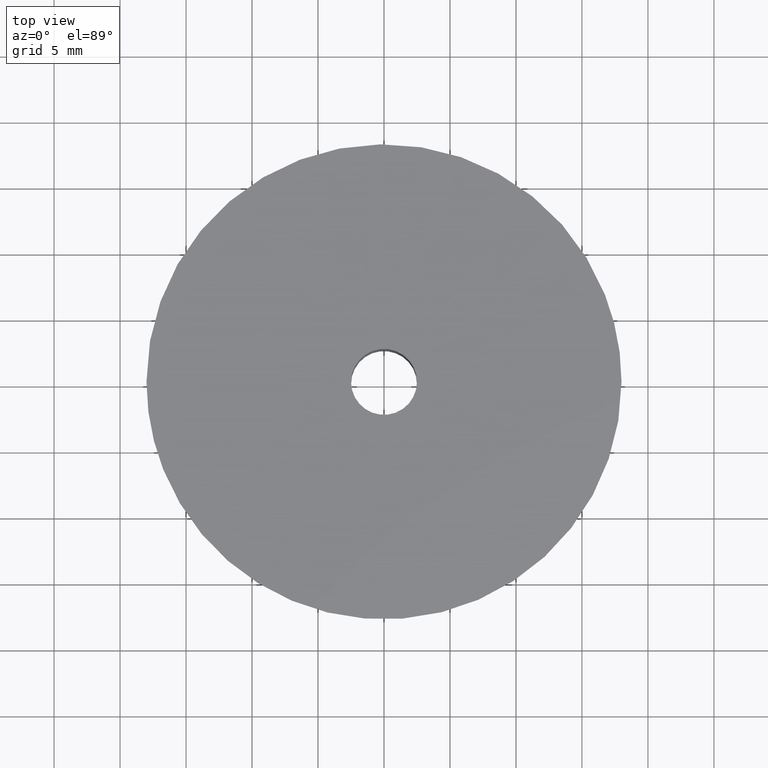
[diagram: clean part render]
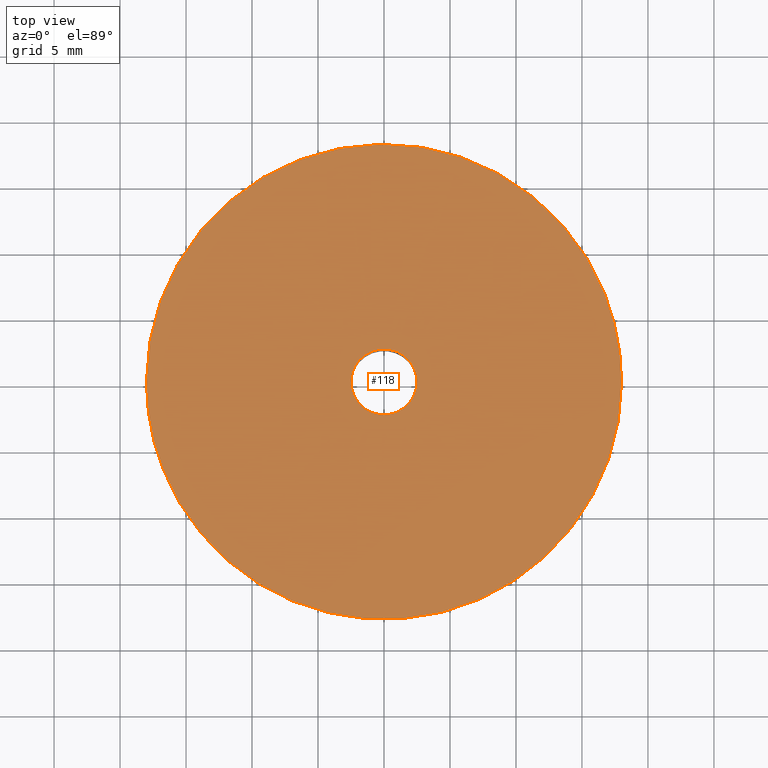
[diagram: same view with one face highlighted and labeled with its STEP entity id]
A machine part, top view. The second image highlights one B-rep face of the part: STEP entity #118.
In plain terms, the highlighted planar face has unit normal (0, 0, -1).
Its self-contained STEP definition (entity closure, byte-faithful):
#118=ADVANCED_FACE('',(#195,#196),#194,.F.);
#194=PLANE('',#373);
#195=FACE_OUTER_BOUND('',#374,.T.);
#196=FACE_BOUND('',#375,.T.);
#370=CARTESIAN_POINT('',(2.16000000000E+001,-2.26866675623E+001,2.20000000000E+001));
#371=DIRECTION('',(0.00000000000E+000,0.00000000000E+000,-1.00000000000E+000));
#372=DIRECTION('',(-1.00000000000E+000,0.00000000000E+000,0.00000000000E+000));
#373=AXIS2_PLACEMENT_3D('',#370,#371,#372);
#374=EDGE_LOOP('',(#530,#531,#532,#533,#534));
#375=EDGE_LOOP('',(#535,#536,#537));
#530=ORIENTED_EDGE('',*,*,#634,.F.);
#531=ORIENTED_EDGE('',*,*,#635,.F.);
#532=ORIENTED_EDGE('',*,*,#636,.F.);
#533=ORIENTED_EDGE('',*,*,#637,.F.);
#534=ORIENTED_EDGE('',*,*,#638,.F.);
#535=ORIENTED_EDGE('',*,*,#639,.T.);
#536=ORIENTED_EDGE('',*,*,#640,.T.);
#537=ORIENTED_EDGE('',*,*,#641,.T.);
#634=EDGE_CURVE('',#786,#787,#788,.T.);
#635=EDGE_CURVE('',#794,#786,#795,.T.);
#636=EDGE_CURVE('',#801,#794,#802,.T.);
#637=EDGE_CURVE('',#808,#801,#809,.T.);
#638=EDGE_CURVE('',#787,#808,#815,.T.);
#639=EDGE_CURVE('',#821,#822,#823,.T.);
#640=EDGE_CURVE('',#822,#829,#830,.T.);
#641=EDGE_CURVE('',#829,#821,#836,.T.);
#786=VERTEX_POINT('',#1152);
#787=VERTEX_POINT('',#1153);
#788=CIRCLE('',#1157,1.79999994365E+001);
#794=VERTEX_POINT('',#1158);
#795=CIRCLE('',#1162,1.79999990315E+001);
#801=VERTEX_POINT('',#1163);
#802=CIRCLE('',#1167,1.79999995544E+001);
#808=VERTEX_POINT('',#1168);
#809=CIRCLE('',#1172,1.80000000000E+001);
#815=CIRCLE('',#1176,1.80000000000E+001);
#821=VERTEX_POINT('',#1177);
#822=VERTEX_POINT('',#1178);
#823=CIRCLE('',#1182,2.50000000000E+000);
#829=VERTEX_POINT('',#1183);
#830=CIRCLE('',#1187,2.50000000000E+000);
#836=CIRCLE('',#1191,2.50000000000E+000);
#1152=CARTESIAN_POINT('',(-1.67375613744E+001,-6.62223671122E+000,2.19999958895E+001));
#1153=CARTESIAN_POINT('',(-1.80000000000E+001,0.00000000000E+000,2.20000000000E+001));
#1154=CARTESIAN_POINT('',(-5.63484412908E-007,1.41614240246E-006,2.19999979448E+001));
#1155=DIRECTION('',(-1.14180157036E-007,5.98942691811E-007,-1.00000000000E+000));
#1156=DIRECTION('',(9.29864518604E-001,3.67902129704E-001,1.14180215132E-007));
#1157=AXIS2_PLACEMENT_3D('',#1154,#1155,#1156);
#1158=CARTESIAN_POINT('',(1.41225336323E+000,-1.79445123084E+001,2.19999962416E+001));
#1159=CARTESIAN_POINT('',(-2.50010632641E-007,-4.77107032992E-007,2.19999960656E+001));
#1160=DIRECTION('',(1.39663330828E-008,-8.71252228513E-009,-1.00000000000E+000));
#1161=DIRECTION('',(-7.84585382907E-002,9.96917377604E-001,-9.78144294777E-009));
#1162=AXIS2_PLACEMENT_3D('',#1159,#1160,#1161);
#1163=CARTESIAN_POINT('',(1.80000000000E+001,0.00000000000E+000,2.20000000000E+001));
#1164=CARTESIAN_POINT('',(4.45646117342E-007,1.02139257052E-007,2.19999981208E+001));
#1165=DIRECTION('',(1.04398717689E-007,1.12937831198E-007,-1.00000000000E+000));
#1166=DIRECTION('',(-1.00000000000E+000,5.67440331005E-009,-1.04398717048E-007));
#1167=AXIS2_PLACEMENT_3D('',#1164,#1165,#1166);
#1168=CARTESIAN_POINT('',(1.67375584237E+001,6.62224569263E+000,2.20000000000E+001));
#1169=CARTESIAN_POINT('',(0.00000000000E+000,0.00000000000E+000,2.20000000000E+001));
#1170=DIRECTION('',(-0.00000000000E+000,-4.18691322316E-016,-1.00000000000E+000));
#1171=DIRECTION('',(1.00000000000E+000,-0.00000000000E+000,-0.00000000000E+000));
#1172=AXIS2_PLACEMENT_3D('',#1169,#1170,#1171);
#1173=CARTESIAN_POINT('',(0.00000000000E+000,0.00000000000E+000,2.20000000000E+001));
#1174=DIRECTION('',(-0.00000000000E+000,-4.18691322316E-016,-1.00000000000E+000));
#1175=DIRECTION('',(1.00000000000E+000,-0.00000000000E+000,-0.00000000000E+000));
#1176=AXIS2_PLACEMENT_3D('',#1173,#1174,#1175);
#1177=CARTESIAN_POINT('',(-2.50000000000E+000,6.66133814775E-016,2.20000000000E+001));
#1178=CARTESIAN_POINT('',(-2.95514653005E-001,2.48247277726E+000,2.20000000000E+001));
#1179=CARTESIAN_POINT('',(1.61426427780E-013,7.34967642302E-014,2.20000000000E+001));
#1180=DIRECTION('',(3.00983386588E-014,6.43981371914E-015,-1.00000000000E+000));
#1181=DIRECTION('',(-1.00000000000E+000,-2.87686541256E-014,-3.00983386588E-014));
#1182=AXIS2_PLACEMENT_3D('',#1179,#1180,#1181);
#1183=CARTESIAN_POINT('',(2.95084678798E-001,-2.48252392382E+000,2.20000000000E+001));
#1184=CARTESIAN_POINT('',(1.61426427780E-013,7.34967642302E-014,2.20000000000E+001));
#1185=DIRECTION('',(3.00983386588E-014,6.43981371914E-015,-1.00000000000E+000));
#1186=DIRECTION('',(-1.00000000000E+000,-2.87686541256E-014,-3.00983386588E-014));
#1187=AXIS2_PLACEMENT_3D('',#1184,#1185,#1186);
#1188=CARTESIAN_POINT('',(1.61426427780E-013,7.34967642302E-014,2.20000000000E+001));
#1189=DIRECTION('',(3.00983386588E-014,6.43981371914E-015,-1.00000000000E+000));
#1190=DIRECTION('',(-1.00000000000E+000,-2.87686541256E-014,-3.00983386588E-014));
#1191=AXIS2_PLACEMENT_3D('',#1188,#1189,#1190);